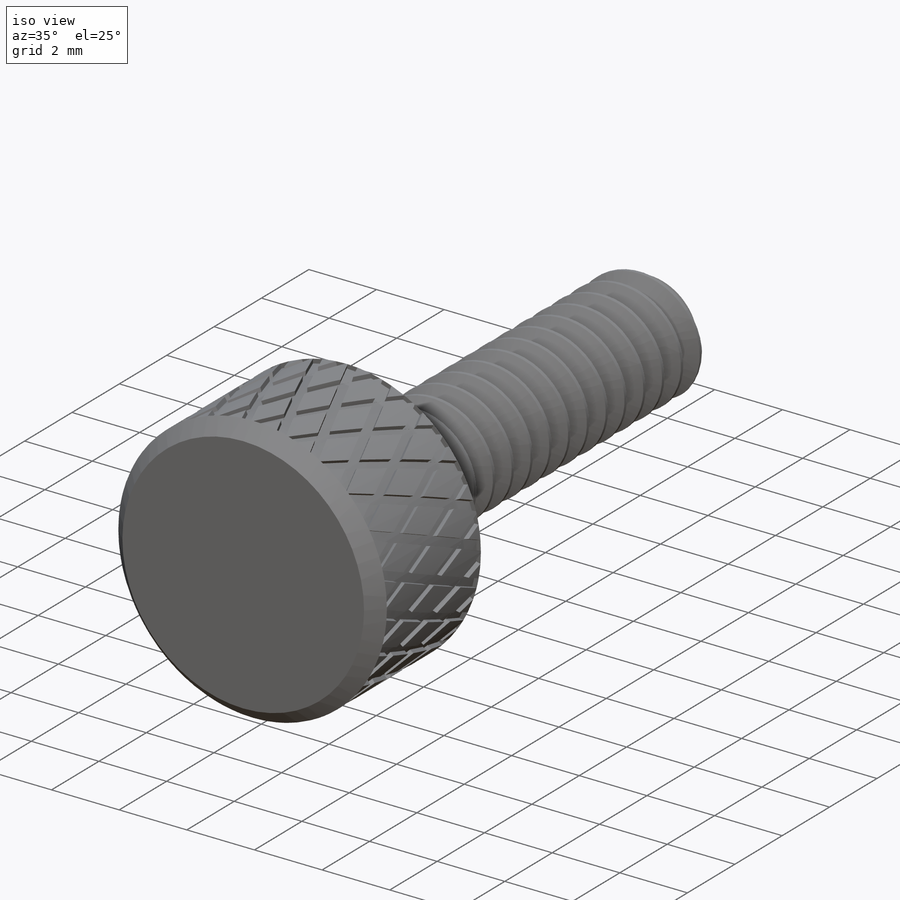
[diagram: iso view]
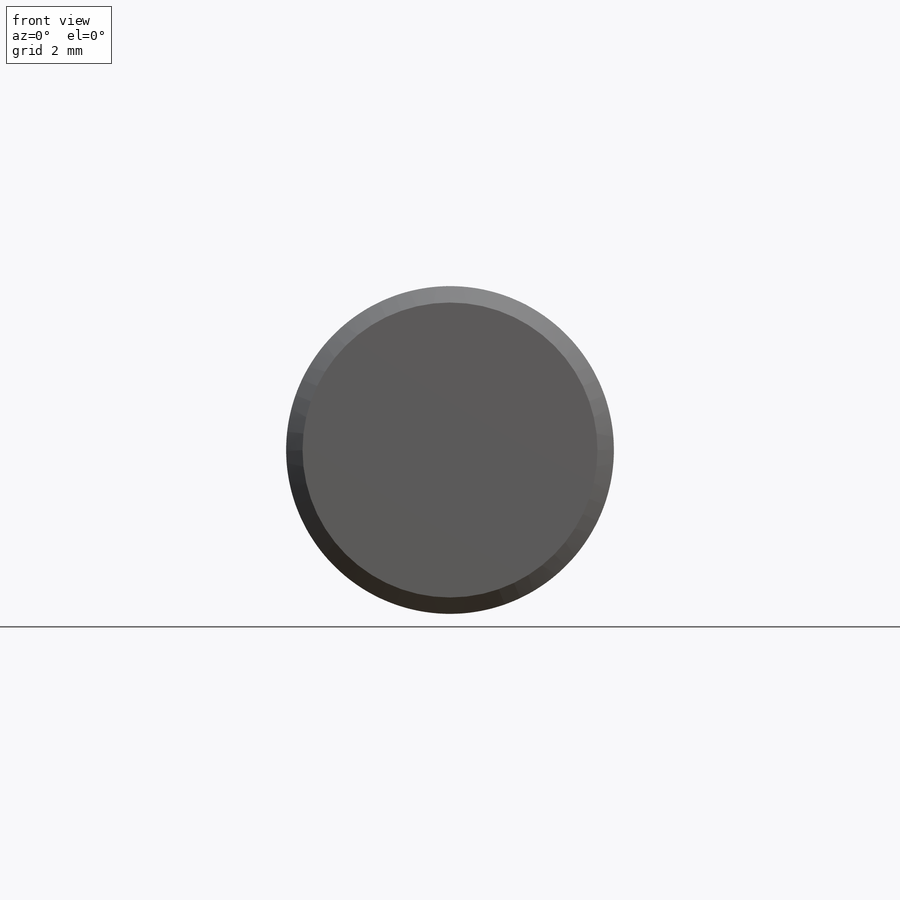
[diagram: front view]
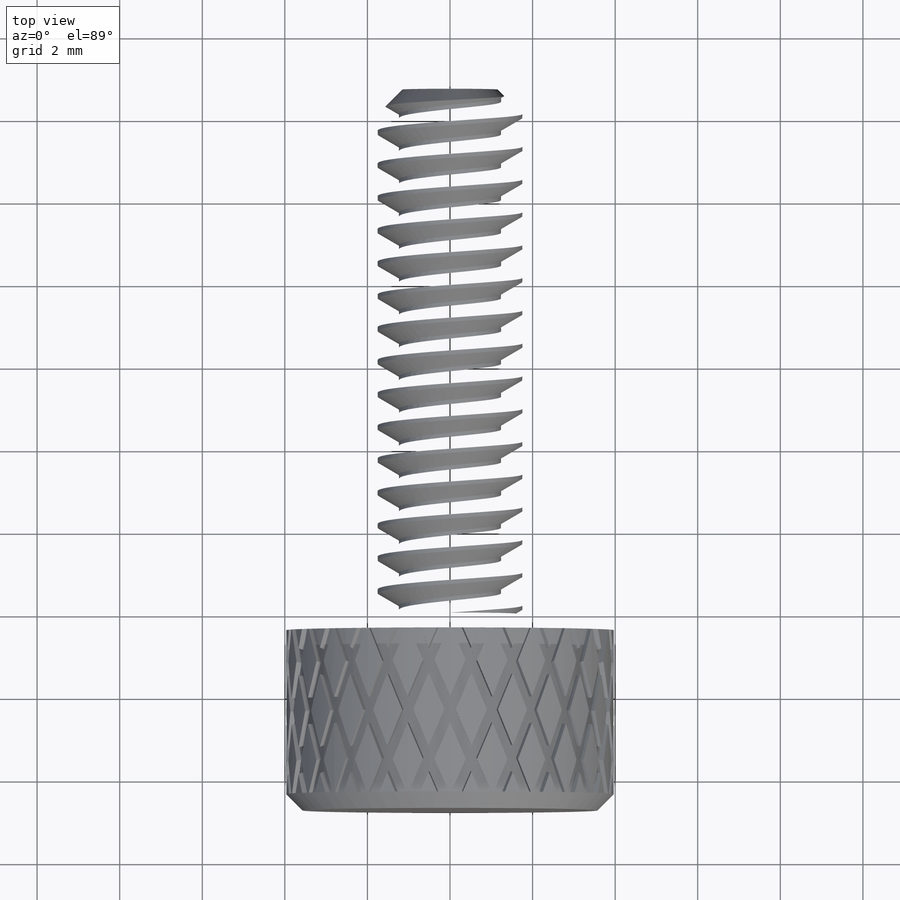
[diagram: top view]
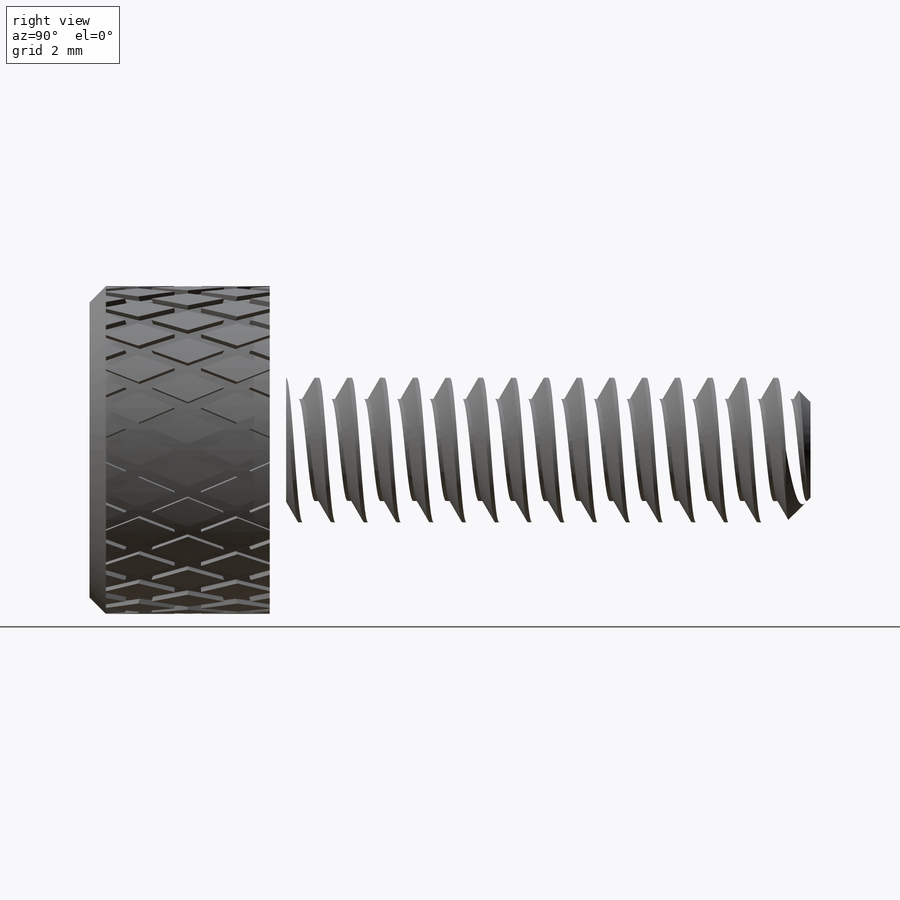
[diagram: right view]
SOLIDWORKS PART (.sldprt)
format: sldprt  version: not decoded by parser v0  size: 1,607,680 bytes
history: native  units: mm
features: sketch x10, extrude x4, chamfer x3, material x1, helix x1, sweep x1, plane x1, cut_extrude x1, pattern_circular x1, boolean_combine x1, revolve x1 (+12 scaffold rows collapsed)
feature tree (37):
  scaffold x12  (default folders/planes/origin — collapsed)
  material  "Material <not specified>"
  sketch  "Sketch20"  dims[D1=3.5052mm D2=12.7mm Head Dia=7.9375mm Head Height=4.7625mm D3=~3.571875mm D4=~0.396875mm D5=~0.396875mm]
  sketch  "Sketch1"  dims[dia=3.5052mm]
  extrude  "Extrude1"  Depth=12.7mm Lg=12.7mm
  chamfer  "Chamfer2"  Distance=0.595313mm Angle=45deg
  sketch  "Sketch15"  dims[D1=0.0mm]
  helix  "Helix/Spiral1"  Pitch=13.49375mm pitch=0.79375mm
  sketch  "Sketch14"  dims[c1.D1=~0.099219mm c1.D2=~0.396875mm c1.D3=~0.901946mm c2.D3=60.0deg]
  sweep  "Cut-Sweep1"
  sketch  "Sketch21"
  extrude  "Boss-Extrude1"  [1 undecoded]
  sketch  "Sketch24"  dims[D1=0.0mm]
  extrude  "Boss-Extrude2"  [1 undecoded]
  sketch  "Sketch25"  dims[D1=0.0mm]
  extrude  "Boss-Extrude3"  [1 undecoded]
  chamfer  "Chamfer3"  Distance=0.396875mm Angle=45deg
  sketch  "Sketch23"  dims[c1.D1=~6.421512mm c2.D1=30.0deg]
  plane  "Plane1"
  sketch  "Sketch22"  dims[c1.D3=4.7625mm c1.D4=4.7625mm c1.D1=0.254mm c1.D2=0.254mm c2.D1=0.127mm c2.D2=0.127mm]
  cut_extrude  "Cut-Extrude1"  Depth=0.127mm
  pattern_circular  "CirPattern1"  Count=24 Angle=360deg
  chamfer  "Chamfer4"  Distance=0.396875mm Angle=45deg
  boolean_combine  "Combine1"
  sketch  "Sketch26"  dims[PT=~29.396798mm]
  revolve  "Partially Threaded"  Angle=360deg
decode coverage: 17 of 23 modeling features carry decoded parameters
note: ~ marks probable driven/reference dimensions
note: 3 parameter values undecoded
summary: no parameter record found for 3 features
note: suppression state not decoded; provenance and decode notes live in map.json
